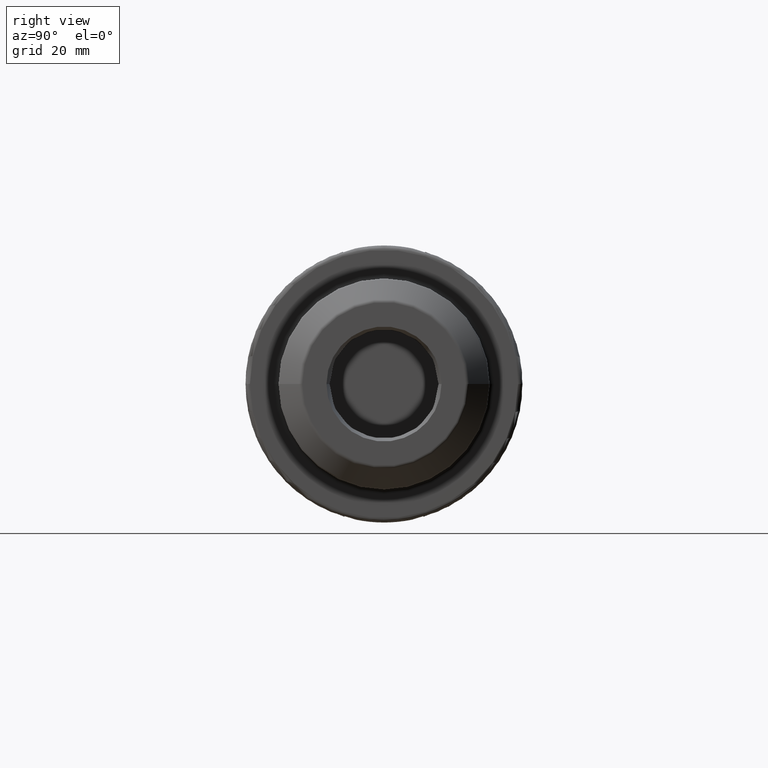
[diagram: clean part render]
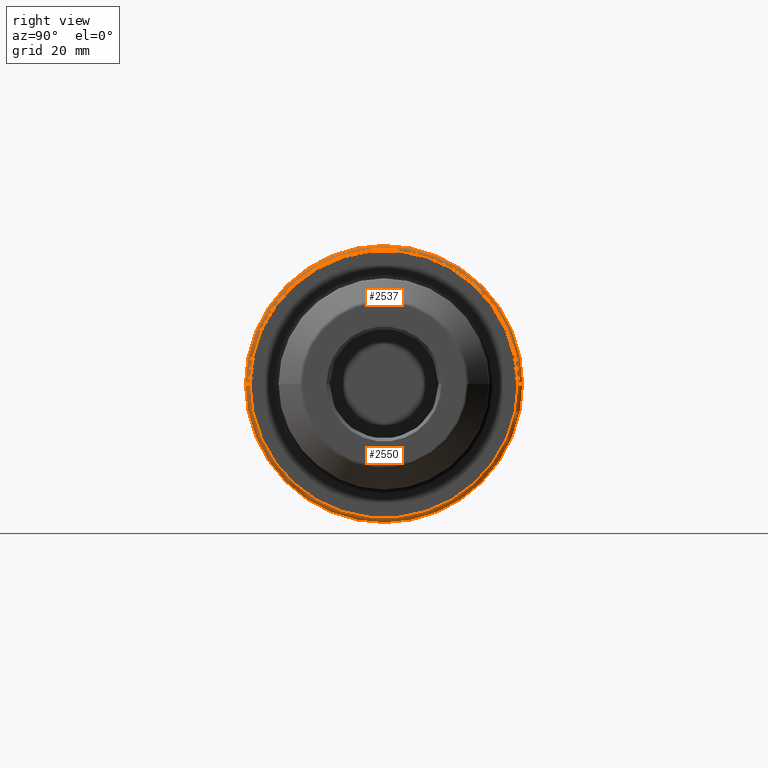
[diagram: same view with one multi-face feature highlighted, each face labeled with its STEP entity id]
A machine part, right view. The highlighted faces form ONE feature: a constant-radius fillet chain: 2 tangent blend faces with common blend radius 1 mm. The faces share edges in the B-rep.
Their STEP definitions:
[1] entity #2537 (Torus):
#792=CARTESIAN_POINT('',(2.6E1,0.E0,0.E0));
#793=DIRECTION('',(1.E0,0.E0,0.E0));
#794=DIRECTION('',(0.E0,1.E0,0.E0));
#795=AXIS2_PLACEMENT_3D('',#792,#793,#794);
#816=CARTESIAN_POINT('',(2.7E1,0.E0,0.E0));
#817=DIRECTION('',(1.E0,0.E0,0.E0));
#818=DIRECTION('',(0.E0,1.E0,0.E0));
#819=AXIS2_PLACEMENT_3D('',#816,#817,#818);
#821=CARTESIAN_POINT('',(2.6E1,3.04875E1,0.E0));
#822=DIRECTION('',(0.E0,0.E0,1.E0));
#823=DIRECTION('',(1.E0,0.E0,0.E0));
#824=AXIS2_PLACEMENT_3D('',#821,#822,#823);
#826=CARTESIAN_POINT('',(2.6E1,-3.04875E1,0.E0));
#827=DIRECTION('',(0.E0,0.E0,-1.E0));
#828=DIRECTION('',(1.E0,0.E0,0.E0));
#829=AXIS2_PLACEMENT_3D('',#826,#827,#828);
#1272=CARTESIAN_POINT('',(2.6E1,3.14875E1,0.E0));
#1273=VERTEX_POINT('',#1272);
#1274=CARTESIAN_POINT('',(2.6E1,-3.14875E1,0.E0));
#1275=VERTEX_POINT('',#1274);
#1342=CARTESIAN_POINT('',(2.7E1,3.04875E1,0.E0));
#1343=VERTEX_POINT('',#1342);
#1344=CARTESIAN_POINT('',(2.7E1,-3.04875E1,0.E0));
#1345=VERTEX_POINT('',#1344);
#2523=CARTESIAN_POINT('',(2.6E1,0.E0,0.E0));
#2524=DIRECTION('',(1.E0,0.E0,0.E0));
#2525=DIRECTION('',(0.E0,-1.E0,0.E0));
#2526=AXIS2_PLACEMENT_3D('',#2523,#2524,#2525);
#2527=TOROIDAL_SURFACE('',#2526,3.04875E1,1.E0);
#2529=ORIENTED_EDGE('',*,*,#2528,.F.);
#2531=ORIENTED_EDGE('',*,*,#2530,.T.);
#2533=ORIENTED_EDGE('',*,*,#2532,.T.);
#2534=ORIENTED_EDGE('',*,*,#2514,.F.);
#2535=EDGE_LOOP('',(#2529,#2531,#2533,#2534));
#2536=FACE_OUTER_BOUND('',#2535,.F.);
#2537=ADVANCED_FACE('',(#2536),#2527,.T.);
#796=CIRCLE('',#795,3.14875E1);
#820=CIRCLE('',#819,3.04875E1);
#825=CIRCLE('',#824,1.E0);
#830=CIRCLE('',#829,1.E0);
#2514=EDGE_CURVE('',#1273,#1275,#796,.T.);
#2528=EDGE_CURVE('',#1343,#1273,#825,.T.);
#2530=EDGE_CURVE('',#1343,#1345,#820,.T.);
#2532=EDGE_CURVE('',#1345,#1275,#830,.T.);
[2] entity #2550 (Torus):
#255=CARTESIAN_POINT('',(2.6E1,0.E0,0.E0));
#256=DIRECTION('',(-1.E0,0.E0,0.E0));
#257=DIRECTION('',(0.E0,1.E0,0.E0));
#258=AXIS2_PLACEMENT_3D('',#255,#256,#257);
#821=CARTESIAN_POINT('',(2.6E1,3.04875E1,0.E0));
#822=DIRECTION('',(0.E0,0.E0,1.E0));
#823=DIRECTION('',(1.E0,0.E0,0.E0));
#824=AXIS2_PLACEMENT_3D('',#821,#822,#823);
#826=CARTESIAN_POINT('',(2.6E1,-3.04875E1,0.E0));
#827=DIRECTION('',(0.E0,0.E0,-1.E0));
#828=DIRECTION('',(1.E0,0.E0,0.E0));
#829=AXIS2_PLACEMENT_3D('',#826,#827,#828);
#831=CARTESIAN_POINT('',(2.7E1,0.E0,0.E0));
#832=DIRECTION('',(-1.E0,0.E0,0.E0));
#833=DIRECTION('',(0.E0,1.E0,0.E0));
#834=AXIS2_PLACEMENT_3D('',#831,#832,#833);
#1272=CARTESIAN_POINT('',(2.6E1,3.14875E1,0.E0));
#1273=VERTEX_POINT('',#1272);
#1274=CARTESIAN_POINT('',(2.6E1,-3.14875E1,0.E0));
#1275=VERTEX_POINT('',#1274);
#1342=CARTESIAN_POINT('',(2.7E1,3.04875E1,0.E0));
#1343=VERTEX_POINT('',#1342);
#1344=CARTESIAN_POINT('',(2.7E1,-3.04875E1,0.E0));
#1345=VERTEX_POINT('',#1344);
#2538=CARTESIAN_POINT('',(2.6E1,0.E0,0.E0));
#2539=DIRECTION('',(1.E0,0.E0,0.E0));
#2540=DIRECTION('',(0.E0,-1.E0,0.E0));
#2541=AXIS2_PLACEMENT_3D('',#2538,#2539,#2540);
#2542=TOROIDAL_SURFACE('',#2541,3.04875E1,1.E0);
#2543=ORIENTED_EDGE('',*,*,#2528,.T.);
#2544=ORIENTED_EDGE('',*,*,#1805,.T.);
#2545=ORIENTED_EDGE('',*,*,#2532,.F.);
#2547=ORIENTED_EDGE('',*,*,#2546,.F.);
#2548=EDGE_LOOP('',(#2543,#2544,#2545,#2547));
#2549=FACE_OUTER_BOUND('',#2548,.F.);
#2550=ADVANCED_FACE('',(#2549),#2542,.T.);
#259=CIRCLE('',#258,3.14875E1);
#825=CIRCLE('',#824,1.E0);
#830=CIRCLE('',#829,1.E0);
#835=CIRCLE('',#834,3.04875E1);
#1805=EDGE_CURVE('',#1273,#1275,#259,.T.);
#2528=EDGE_CURVE('',#1343,#1273,#825,.T.);
#2532=EDGE_CURVE('',#1345,#1275,#830,.T.);
#2546=EDGE_CURVE('',#1343,#1345,#835,.T.);